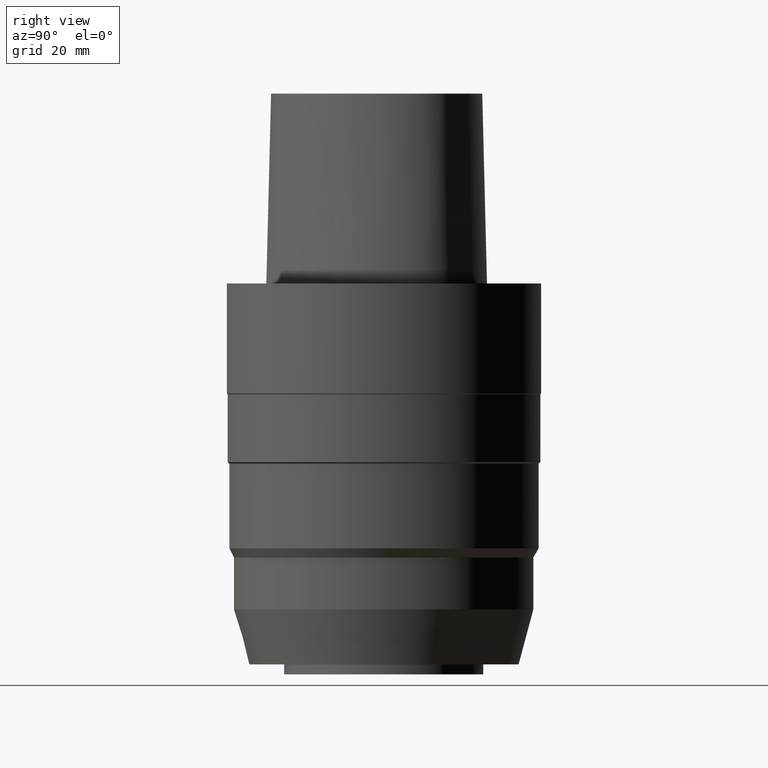
[diagram: clean part render]
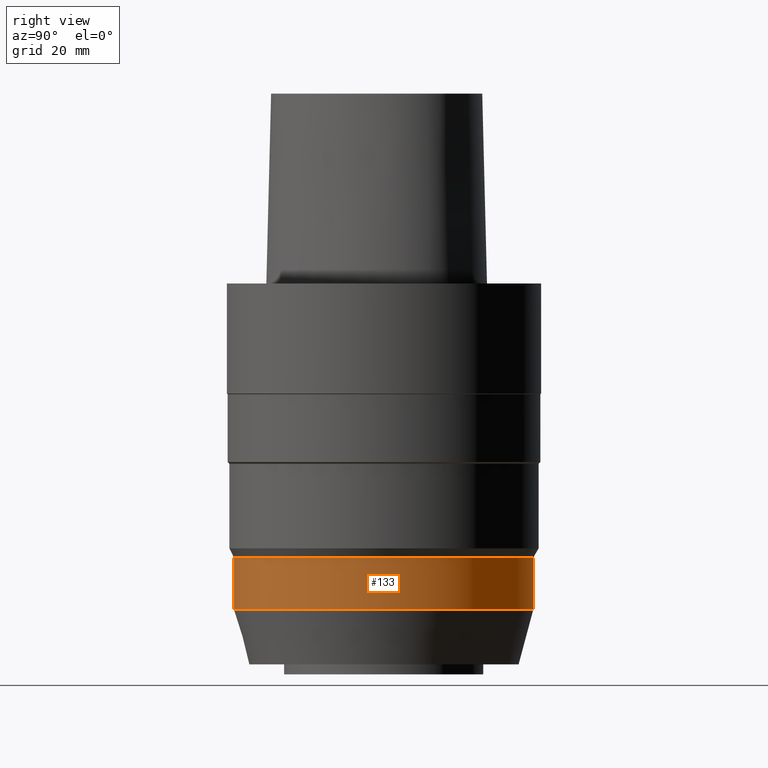
[diagram: same view with one face highlighted and labeled with its STEP entity id]
A machine part, right view. The second image highlights one B-rep face of the part: STEP entity #133.
In plain terms, the highlighted cylindrical surface (bore or boss wall) has radius 29.95 mm, axis along (0, 0, -1).
Its self-contained STEP definition (entity closure, byte-faithful):
#102=EDGE_CURVE('Unnamed[1]',#229,#229,#230,.T.);
#130=EDGE_CURVE('Unnamed[1]',#271,#271,#272,.T.);
#133=ADVANCED_FACE('Unnamed[1]',(#275,#276),#277,.T.);
#229=VERTEX_POINT('',#555);
#230=CIRCLE('',#556,29.9499999999999);
#271=VERTEX_POINT('',#625);
#272=CIRCLE('',#626,29.9500000000003);
#275=FACE_BOUND('',#630,.T.);
#276=FACE_BOUND('',#631,.T.);
#277=CYLINDRICAL_SURFACE('',#632,29.9500000000001);
#555=CARTESIAN_POINT('',(3.35553222966382E-015,29.9499999999999,-54.8000000000012));
#556=AXIS2_PLACEMENT_3D('',#732,#733,#734);
#625=CARTESIAN_POINT('',(3.99176380357903E-015,29.9500000000003,-65.1904501176707));
#626=AXIS2_PLACEMENT_3D('',#781,#782,#783);
#630=EDGE_LOOP('',(#785));
#631=EDGE_LOOP('',(#786));
#632=AXIS2_PLACEMENT_3D('',#787,#788,#789);
#732=CARTESIAN_POINT('',(3.35553222966382E-015,6.71106445932765E-015,-54.8000000000012));
#733=DIRECTION('',(6.12323399573677E-017,1.22464679914735E-016,-1.0));
#734=DIRECTION('',(-1.23259516440783E-032,1.0,1.22464679914735E-016));
#781=CARTESIAN_POINT('',(3.99176380357903E-015,7.98352760715806E-015,-65.1904501176707));
#782=DIRECTION('',(6.12323399573677E-017,1.22464679914735E-016,-1.0));
#783=DIRECTION('',(-1.23259516440783E-032,1.0,1.22464679914735E-016));
#785=ORIENTED_EDGE('',*,*,#130,.F.);
#786=ORIENTED_EDGE('',*,*,#102,.T.);
#787=CARTESIAN_POINT('',(3.67364801662143E-015,7.34729603324286E-015,-59.995225058836));
#788=DIRECTION('',(6.12323399573677E-017,1.22464679914735E-016,-1.0));
#789=DIRECTION('',(-1.23259516440783E-032,1.0,1.22464679914735E-016));